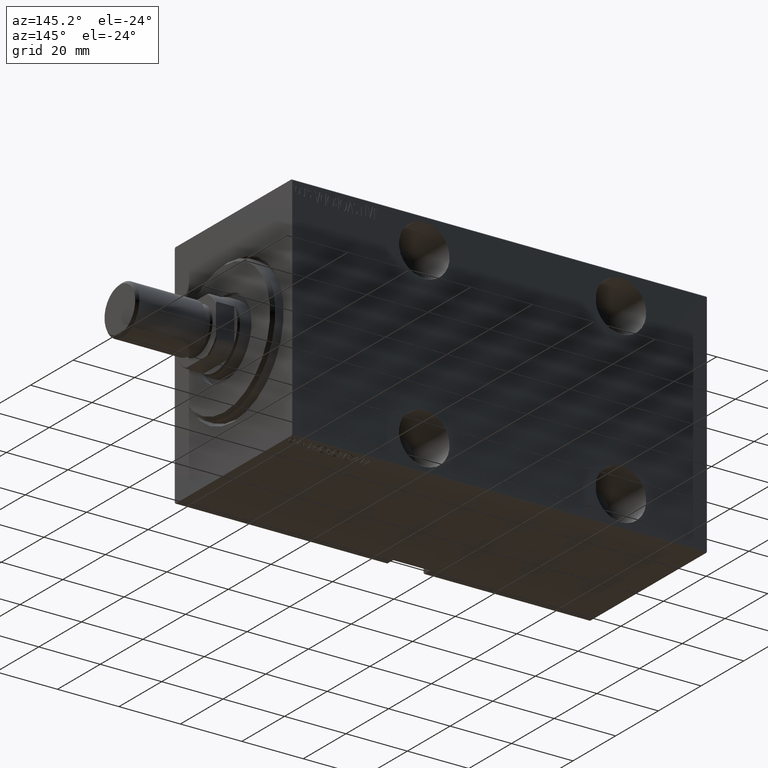
[diagram: clean part render]
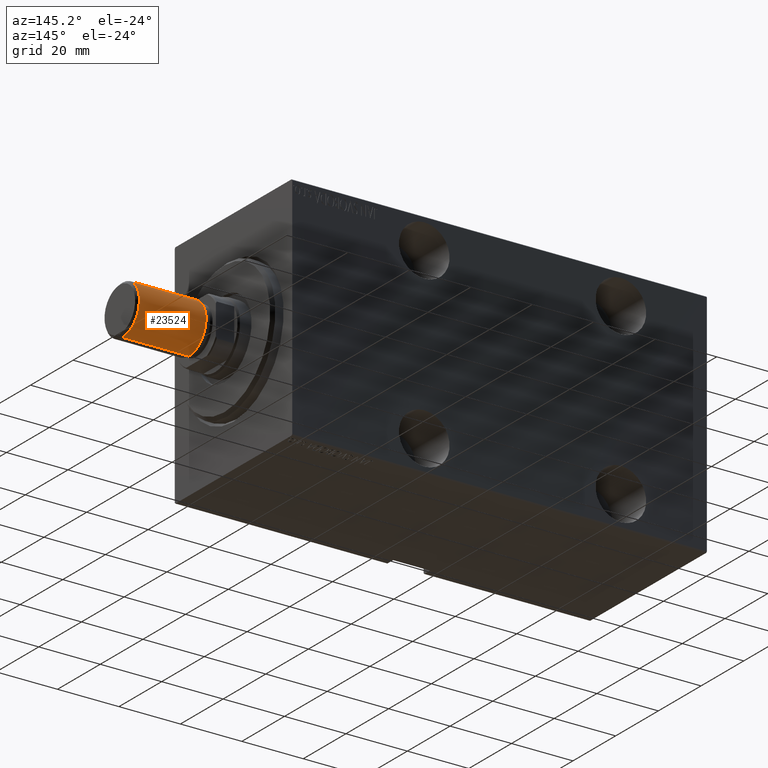
[diagram: same view with one face highlighted and labeled with its STEP entity id]
A machine part, auxiliary view. The second image highlights one B-rep face of the part: STEP entity #23524.
In plain terms, the highlighted cylindrical surface (edge-blend (fillet) strip) has radius 8 mm, axis along (1, -0, -0).
Its self-contained STEP definition (entity closure, byte-faithful):
#1290 = VERTEX_POINT ( 'NONE', #9504 ) ;
#2080 = VERTEX_POINT ( 'NONE', #4263 ) ;
#2373 = DIRECTION ( 'NONE',  ( 0.000000000000000000, 0.000000000000000000, 1.000000000000000000 ) ) ;
#3501 = EDGE_CURVE ( 'NONE', #42031, #5614, #40241, .T. ) ;
#4155 = VECTOR ( 'NONE', #20106, 1000.000000000000000 ) ;
#4263 = CARTESIAN_POINT ( 'NONE',  ( 8.000000000000000000, 9.797174393178823685E-16, 22.50000000000000000 ) ) ;
#5614 = VERTEX_POINT ( 'NONE', #6997 ) ;
#5863 = EDGE_CURVE ( 'NONE', #2080, #42031, #19125, .T. ) ;
#6306 = ORIENTED_EDGE ( 'NONE', *, *, #3501, .F. ) ;
#6840 = VECTOR ( 'NONE', #37416, 1000.000000000000000 ) ;
#6997 = CARTESIAN_POINT ( 'NONE',  ( -8.000000000000000000, 0.000000000000000000, 0.8000000000000160316 ) ) ;
#7948 = AXIS2_PLACEMENT_3D ( 'NONE', #29489, #2373, #39790 ) ;
#9504 = CARTESIAN_POINT ( 'NONE',  ( 8.000000000000000000, 9.797174393178823685E-16, 0.8000000000000160316 ) ) ;
#10949 = DIRECTION ( 'NONE',  ( -0.000000000000000000, -0.000000000000000000, 1.000000000000000000 ) ) ;
#11368 = DIRECTION ( 'NONE',  ( -1.000000000000000000, 0.000000000000000000, 0.000000000000000000 ) ) ;
#12525 = AXIS2_PLACEMENT_3D ( 'NONE', #27805, #10949, #17730 ) ;
#17730 = DIRECTION ( 'NONE',  ( 1.000000000000000000, 0.000000000000000000, 0.000000000000000000 ) ) ;
#17940 = DIRECTION ( 'NONE',  ( -0.000000000000000000, -0.000000000000000000, -1.000000000000000000 ) ) ;
#19125 = CIRCLE ( 'NONE', #7948, 8.000000000000000000 ) ;
#20106 = DIRECTION ( 'NONE',  ( -0.000000000000000000, -0.000000000000000000, -1.000000000000000000 ) ) ;
#20211 = CIRCLE ( 'NONE', #12525, 8.000000000000000000 ) ;
#21826 = ORIENTED_EDGE ( 'NONE', *, *, #5863, .F. ) ;
#23029 = EDGE_CURVE ( 'NONE', #2080, #1290, #27786, .T. ) ;
#23387 = CARTESIAN_POINT ( 'NONE',  ( -8.000000000000000000, 0.000000000000000000, 22.50000000000000000 ) ) ;
#23524 = ADVANCED_FACE ( 'NONE', ( #38268 ), #41349, .T. ) ;
#26392 = AXIS2_PLACEMENT_3D ( 'NONE', #41556, #17940, #11368 ) ;
#26779 = EDGE_CURVE ( 'NONE', #1290, #5614, #20211, .T. ) ;
#27786 = LINE ( 'NONE', #34328, #6840 ) ;
#27805 = CARTESIAN_POINT ( 'NONE',  ( 0.000000000000000000, 0.000000000000000000, 0.8000000000000160316 ) ) ;
#29489 = CARTESIAN_POINT ( 'NONE',  ( 0.000000000000000000, 0.000000000000000000, 22.50000000000000000 ) ) ;
#34328 = CARTESIAN_POINT ( 'NONE',  ( 8.000000000000000000, 9.797174393178823685E-16, 22.50000000000000000 ) ) ;
#36356 = ORIENTED_EDGE ( 'NONE', *, *, #23029, .T. ) ;
#37301 = ORIENTED_EDGE ( 'NONE', *, *, #26779, .T. ) ;
#37416 = DIRECTION ( 'NONE',  ( -0.000000000000000000, -0.000000000000000000, -1.000000000000000000 ) ) ;
#37571 = CARTESIAN_POINT ( 'NONE',  ( -8.000000000000000000, 0.000000000000000000, 22.50000000000000000 ) ) ;
#38268 = FACE_OUTER_BOUND ( 'NONE', #38885, .T. ) ;
#38885 = EDGE_LOOP ( 'NONE', ( #21826, #36356, #37301, #6306 ) ) ;
#39790 = DIRECTION ( 'NONE',  ( 1.000000000000000000, 0.000000000000000000, 0.000000000000000000 ) ) ;
#40241 = LINE ( 'NONE', #23387, #4155 ) ;
#41349 = CYLINDRICAL_SURFACE ( 'NONE', #26392, 8.000000000000000000 ) ;
#41556 = CARTESIAN_POINT ( 'NONE',  ( 0.000000000000000000, 0.000000000000000000, 22.50000000000000000 ) ) ;
#42031 = VERTEX_POINT ( 'NONE', #37571 ) ;